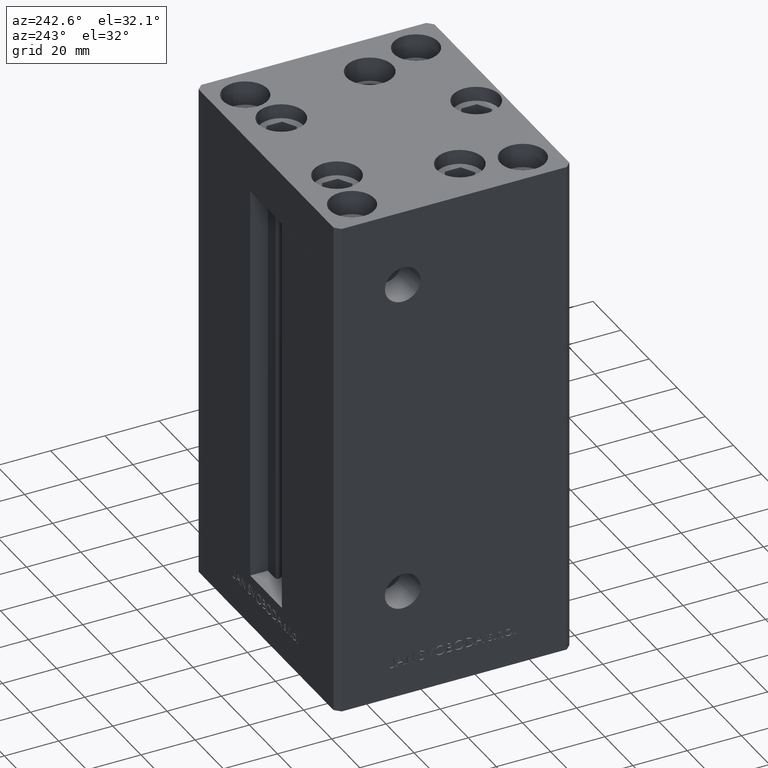
[diagram: clean part render]
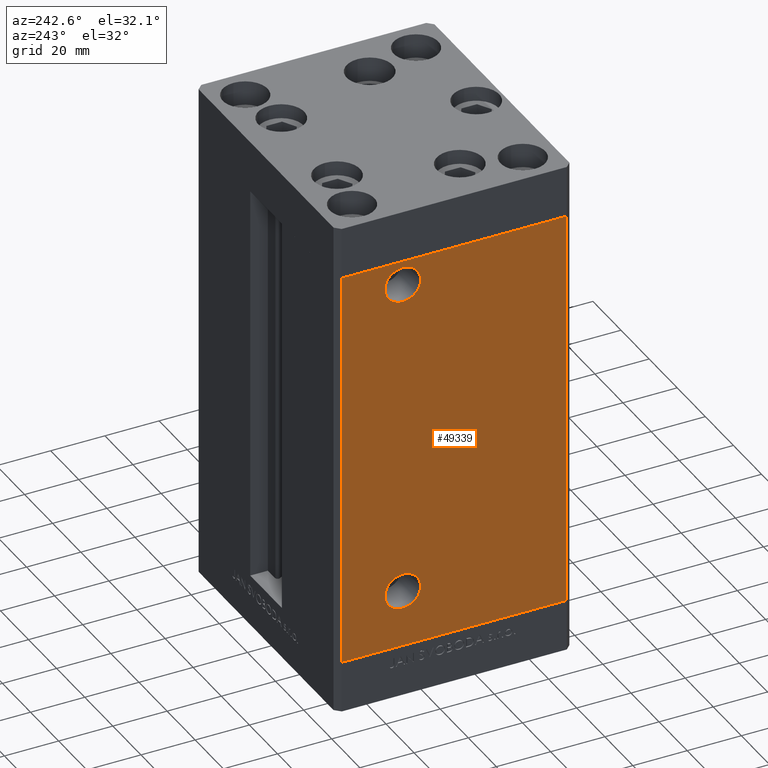
[diagram: same view with one face highlighted and labeled with its STEP entity id]
A machine part, auxiliary view. The second image highlights one B-rep face of the part: STEP entity #49339.
In plain terms, the highlighted planar face has unit normal (1, 0, 0).
Its self-contained STEP definition (entity closure, byte-faithful):
#579 = LINE ( 'NONE', #46788, #3278 ) ;
#933 = EDGE_CURVE ( 'NONE', #28485, #43734, #2359, .T. ) ;
#1434 = CARTESIAN_POINT ( 'NONE',  ( -50.00000000000001421, 41.49999999999999289, 0.000000000000000000 ) ) ;
#1545 = VERTEX_POINT ( 'NONE', #46960 ) ;
#2359 = LINE ( 'NONE', #10982, #17903 ) ;
#2594 = LINE ( 'NONE', #9471, #19873 ) ;
#3278 = VECTOR ( 'NONE', #47042, 1000.000000000000000 ) ;
#3682 = DIRECTION ( 'NONE',  ( 1.000000000000000000, 3.344045254895050480E-16, -0.000000000000000000 ) ) ;
#3849 = DIRECTION ( 'NONE',  ( -0.000000000000000000, -0.000000000000000000, -1.000000000000000000 ) ) ;
#4421 = ORIENTED_EDGE ( 'NONE', *, *, #9740, .F. ) ;
#5162 = DIRECTION ( 'NONE',  ( 0.000000000000000000, -1.000000000000000000, 0.000000000000000000 ) ) ;
#5180 = AXIS2_PLACEMENT_3D ( 'NONE', #21949, #21706, #37645 ) ;
#5471 = ORIENTED_EDGE ( 'NONE', *, *, #16056, .T. ) ;
#6308 = CARTESIAN_POINT ( 'NONE',  ( -50.00000000000000711, 25.57999999999997343, 20.99999999999998934 ) ) ;
#6798 = CIRCLE ( 'NONE', #44083, 6.580000000000016058 ) ;
#6925 = DIRECTION ( 'NONE',  ( 3.344045254895050973E-16, -1.000000000000000000, 0.000000000000000000 ) ) ;
#7494 = PLANE ( 'NONE',  #32407 ) ;
#8245 = EDGE_CURVE ( 'NONE', #1545, #45102, #30307, .T. ) ;
#9233 = CARTESIAN_POINT ( 'NONE',  ( -49.99999999999998579, -41.49999999999999289, 0.000000000000000000 ) ) ;
#9471 = CARTESIAN_POINT ( 'NONE',  ( -50.00000000000001421, 41.49999999999999289, 148.5000000000000000 ) ) ;
#9740 = EDGE_CURVE ( 'NONE', #45102, #1545, #6798, .T. ) ;
#10041 = VERTEX_POINT ( 'NONE', #45062 ) ;
#10982 = CARTESIAN_POINT ( 'NONE',  ( -49.99999999999998579, -41.49999999999999289, 148.5000000000000000 ) ) ;
#11094 = ORIENTED_EDGE ( 'NONE', *, *, #21255, .F. ) ;
#11318 = FACE_BOUND ( 'NONE', #16935, .T. ) ;
#11419 = AXIS2_PLACEMENT_3D ( 'NONE', #35622, #39936, #5162 ) ;
#11888 = VECTOR ( 'NONE', #6925, 1000.000000000000000 ) ;
#11942 = DIRECTION ( 'NONE',  ( -1.000000000000000000, -2.275047181608927644E-16, 0.000000000000000000 ) ) ;
#12201 = CIRCLE ( 'NONE', #11419, 6.580000000000002736 ) ;
#12721 = VERTEX_POINT ( 'NONE', #1434 ) ;
#14099 = EDGE_LOOP ( 'NONE', ( #44175, #24022 ) ) ;
#16056 = EDGE_CURVE ( 'NONE', #32853, #12721, #2594, .T. ) ;
#16538 = ORIENTED_EDGE ( 'NONE', *, *, #8245, .F. ) ;
#16935 = EDGE_LOOP ( 'NONE', ( #16538, #4421 ) ) ;
#17903 = VECTOR ( 'NONE', #3849, 1000.000000000000000 ) ;
#18022 = EDGE_LOOP ( 'NONE', ( #45356, #46728, #11094, #5471 ) ) ;
#19873 = VECTOR ( 'NONE', #36621, 1000.000000000000000 ) ;
#21255 = EDGE_CURVE ( 'NONE', #32853, #28485, #45518, .T. ) ;
#21706 = DIRECTION ( 'NONE',  ( -1.000000000000000000, -2.275047181608927644E-16, 0.000000000000000000 ) ) ;
#21768 = CARTESIAN_POINT ( 'NONE',  ( -49.99999999999998579, -41.49999999999999289, 148.5000000000000000 ) ) ;
#21949 = CARTESIAN_POINT ( 'NONE',  ( -50.00000000000000711, 19.00000000000000000, 139.4999999999999716 ) ) ;
#24022 = ORIENTED_EDGE ( 'NONE', *, *, #49466, .F. ) ;
#26744 = CARTESIAN_POINT ( 'NONE',  ( -50.00000000000001421, 41.49999999999999289, 148.5000000000000000 ) ) ;
#27380 = CARTESIAN_POINT ( 'NONE',  ( -50.00000000000001421, 41.49999999999999289, 148.5000000000000000 ) ) ;
#28485 = VERTEX_POINT ( 'NONE', #21768 ) ;
#29572 = DIRECTION ( 'NONE',  ( 0.000000000000000000, -1.000000000000000000, 0.000000000000000000 ) ) ;
#30307 = CIRCLE ( 'NONE', #5180, 6.580000000000016058 ) ;
#32407 = AXIS2_PLACEMENT_3D ( 'NONE', #38462, #3682, #40470 ) ;
#32853 = VERTEX_POINT ( 'NONE', #27380 ) ;
#34730 = EDGE_CURVE ( 'NONE', #10041, #36497, #12201, .T. ) ;
#35622 = CARTESIAN_POINT ( 'NONE',  ( -50.00000000000000711, 18.99999999999997158, 20.99999999999998934 ) ) ;
#36497 = VERTEX_POINT ( 'NONE', #6308 ) ;
#36621 = DIRECTION ( 'NONE',  ( -0.000000000000000000, -0.000000000000000000, -1.000000000000000000 ) ) ;
#37536 = EDGE_CURVE ( 'NONE', #12721, #43734, #579, .T. ) ;
#37645 = DIRECTION ( 'NONE',  ( 0.000000000000000000, -1.000000000000000000, 0.000000000000000000 ) ) ;
#38462 = CARTESIAN_POINT ( 'NONE',  ( -50.00000000000001421, 41.49999999999999289, 148.5000000000000000 ) ) ;
#38871 = CIRCLE ( 'NONE', #41307, 6.580000000000002736 ) ;
#39936 = DIRECTION ( 'NONE',  ( -1.000000000000000000, -2.275047181608927644E-16, 0.000000000000000000 ) ) ;
#40470 = DIRECTION ( 'NONE',  ( -3.344045254895050480E-16, 1.000000000000000000, 0.000000000000000000 ) ) ;
#41225 = DIRECTION ( 'NONE',  ( -1.000000000000000000, -2.275047181608927644E-16, 0.000000000000000000 ) ) ;
#41307 = AXIS2_PLACEMENT_3D ( 'NONE', #45269, #41225, #29572 ) ;
#42271 = FACE_OUTER_BOUND ( 'NONE', #18022, .T. ) ;
#43734 = VERTEX_POINT ( 'NONE', #9233 ) ;
#44083 = AXIS2_PLACEMENT_3D ( 'NONE', #49576, #11942, #45514 ) ;
#44175 = ORIENTED_EDGE ( 'NONE', *, *, #34730, .F. ) ;
#45062 = CARTESIAN_POINT ( 'NONE',  ( -50.00000000000000711, 12.41999999999996973, 20.99999999999998934 ) ) ;
#45063 = CARTESIAN_POINT ( 'NONE',  ( -50.00000000000000711, 25.58000000000001606, 139.4999999999999716 ) ) ;
#45102 = VERTEX_POINT ( 'NONE', #45063 ) ;
#45269 = CARTESIAN_POINT ( 'NONE',  ( -50.00000000000000711, 18.99999999999997158, 20.99999999999998934 ) ) ;
#45356 = ORIENTED_EDGE ( 'NONE', *, *, #37536, .T. ) ;
#45514 = DIRECTION ( 'NONE',  ( 0.000000000000000000, -1.000000000000000000, 0.000000000000000000 ) ) ;
#45518 = LINE ( 'NONE', #26744, #11888 ) ;
#46070 = FACE_BOUND ( 'NONE', #14099, .T. ) ;
#46728 = ORIENTED_EDGE ( 'NONE', *, *, #933, .F. ) ;
#46788 = CARTESIAN_POINT ( 'NONE',  ( -50.00000000000001421, 41.49999999999999289, 0.000000000000000000 ) ) ;
#46960 = CARTESIAN_POINT ( 'NONE',  ( -50.00000000000000711, 12.41999999999998394, 139.4999999999999716 ) ) ;
#47042 = DIRECTION ( 'NONE',  ( 3.344045254895050973E-16, -1.000000000000000000, 0.000000000000000000 ) ) ;
#49339 = ADVANCED_FACE ( 'NONE', ( #46070, #11318, #42271 ), #7494, .F. ) ;
#49466 = EDGE_CURVE ( 'NONE', #36497, #10041, #38871, .T. ) ;
#49576 = CARTESIAN_POINT ( 'NONE',  ( -50.00000000000000711, 19.00000000000000000, 139.4999999999999716 ) ) ;